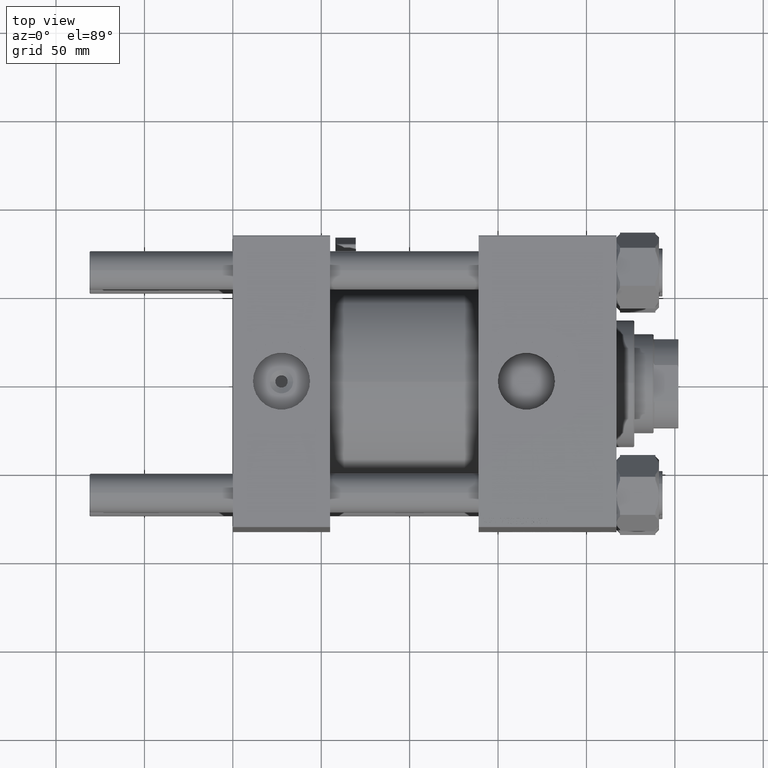
[diagram: clean part render]
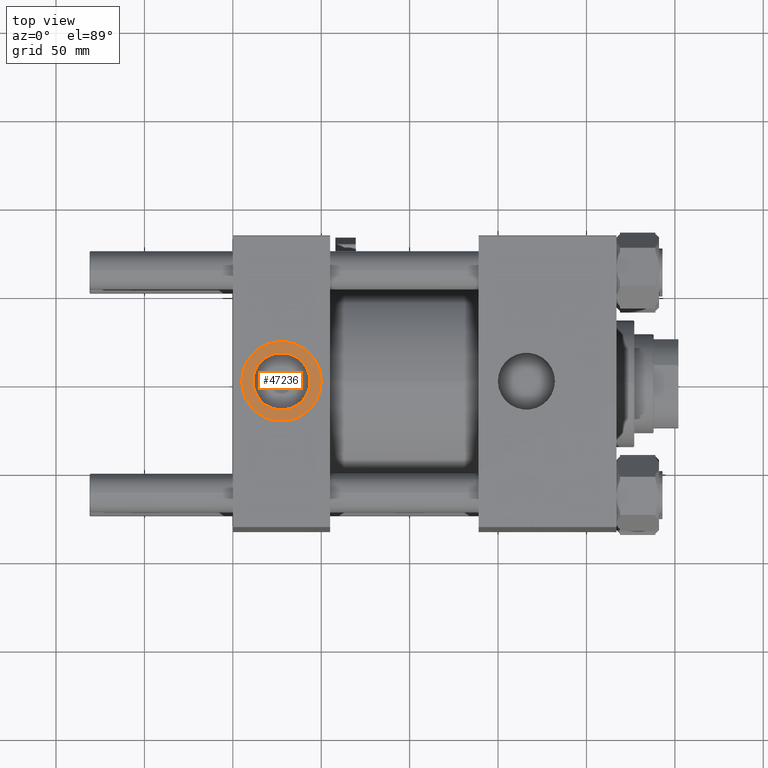
[diagram: same view with one face highlighted and labeled with its STEP entity id]
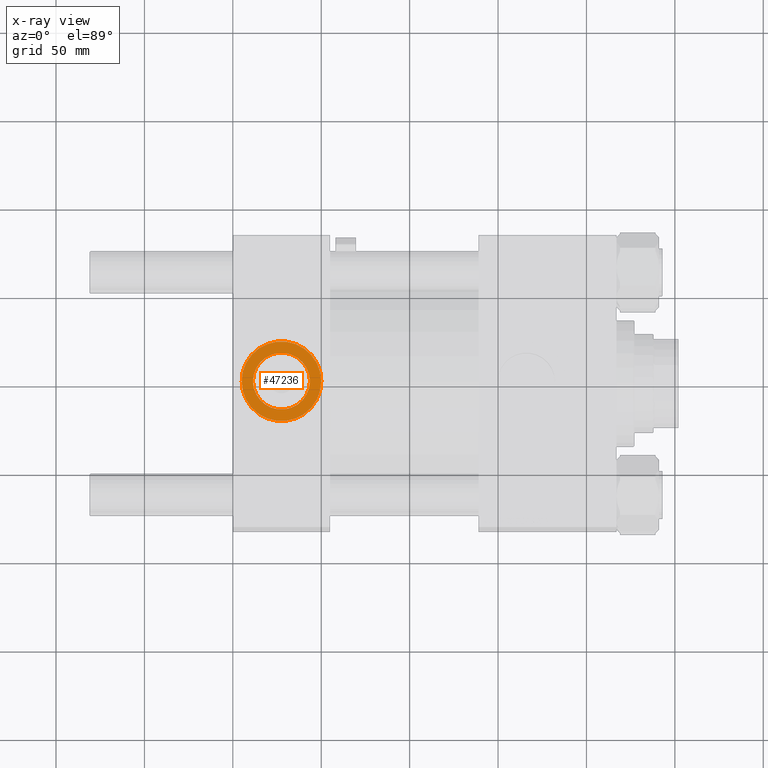
[diagram: x-ray of the same camera — body ghosted, the highlighted face saturated]
A machine part, top view. The second image highlights one B-rep face of the part: STEP entity #47236.
The next image is the same camera in x-ray: the body ghosted, the highlighted face saturated — about 0% of this face is hidden behind the body in this view.
In plain terms, the highlighted planar face has unit normal (0, 0, 1).
Its self-contained STEP definition (entity closure, byte-faithful):
#424 = ORIENTED_EDGE ( 'NONE', *, *, #9809, .T. ) ;
#1950 = CARTESIAN_POINT ( 'NONE',  ( 27.50000000000000000, -8.673617379884037050E-15, 82.30000000000001137 ) ) ;
#5539 = ORIENTED_EDGE ( 'NONE', *, *, #5695, .T. ) ;
#5695 = EDGE_CURVE ( 'NONE', #24710, #45127, #39910, .T. ) ;
#5723 = ORIENTED_EDGE ( 'NONE', *, *, #8083, .F. ) ;
#7278 = CARTESIAN_POINT ( 'NONE',  ( 27.50000000000000000, -8.673617379884037050E-15, 82.30000000000001137 ) ) ;
#8083 = EDGE_CURVE ( 'NONE', #50479, #17357, #19612, .T. ) ;
#8230 = CARTESIAN_POINT ( 'NONE',  ( 27.50000000000000000, -8.673617379884037050E-15, 82.30000000000001137 ) ) ;
#8589 = AXIS2_PLACEMENT_3D ( 'NONE', #1950, #46127, #46641 ) ;
#8626 = EDGE_LOOP ( 'NONE', ( #25389, #5723 ) ) ;
#9476 = DIRECTION ( 'NONE',  ( 0.000000000000000000, 0.000000000000000000, 1.000000000000000000 ) ) ;
#9809 = EDGE_CURVE ( 'NONE', #45127, #24710, #15415, .T. ) ;
#10750 = DIRECTION ( 'NONE',  ( 0.000000000000000000, 0.000000000000000000, 1.000000000000000000 ) ) ;
#11015 = PLANE ( 'NONE',  #40804 ) ;
#11504 = CARTESIAN_POINT ( 'NONE',  ( 27.50000000000000000, -8.673617379884037050E-15, 82.30000000000001137 ) ) ;
#12630 = EDGE_LOOP ( 'NONE', ( #424, #5539 ) ) ;
#12753 = DIRECTION ( 'NONE',  ( 1.000000000000000000, 0.000000000000000000, 0.000000000000000000 ) ) ;
#14528 = CARTESIAN_POINT ( 'NONE',  ( 11.37999999999999012, -6.699486739658503022E-15, 82.30000000000001137 ) ) ;
#15061 = CARTESIAN_POINT ( 'NONE',  ( 50.00000000000000000, -8.673617379884037050E-15, 82.30000000000001137 ) ) ;
#15415 = CIRCLE ( 'NONE', #8589, 22.50000000000000355 ) ;
#17357 = VERTEX_POINT ( 'NONE', #33968 ) ;
#17471 = CARTESIAN_POINT ( 'NONE',  ( 27.50000000000000000, -8.673617379884037050E-15, 82.30000000000001137 ) ) ;
#19612 = CIRCLE ( 'NONE', #23045, 16.12000000000000455 ) ;
#20066 = FACE_BOUND ( 'NONE', #8626, .T. ) ;
#20568 = DIRECTION ( 'NONE',  ( 1.000000000000000000, 0.000000000000000000, 0.000000000000000000 ) ) ;
#21219 = DIRECTION ( 'NONE',  ( 1.000000000000000000, 0.000000000000000000, 0.000000000000000000 ) ) ;
#23045 = AXIS2_PLACEMENT_3D ( 'NONE', #17471, #9476, #21219 ) ;
#24710 = VERTEX_POINT ( 'NONE', #35331 ) ;
#25389 = ORIENTED_EDGE ( 'NONE', *, *, #52237, .F. ) ;
#28489 = DIRECTION ( 'NONE',  ( 0.000000000000000000, 0.000000000000000000, 1.000000000000000000 ) ) ;
#32033 = FACE_OUTER_BOUND ( 'NONE', #12630, .T. ) ;
#33968 = CARTESIAN_POINT ( 'NONE',  ( 43.62000000000000455, -8.673617379884037050E-15, 82.30000000000001137 ) ) ;
#34202 = AXIS2_PLACEMENT_3D ( 'NONE', #11504, #48477, #20568 ) ;
#35331 = CARTESIAN_POINT ( 'NONE',  ( 4.999999999999993783, -5.918162081802491483E-15, 82.30000000000001137 ) ) ;
#39910 = CIRCLE ( 'NONE', #52648, 22.50000000000000355 ) ;
#40804 = AXIS2_PLACEMENT_3D ( 'NONE', #7278, #10750, #44001 ) ;
#44001 = DIRECTION ( 'NONE',  ( 1.000000000000000000, 0.000000000000000000, -0.000000000000000000 ) ) ;
#45127 = VERTEX_POINT ( 'NONE', #15061 ) ;
#46127 = DIRECTION ( 'NONE',  ( 0.000000000000000000, 0.000000000000000000, 1.000000000000000000 ) ) ;
#46641 = DIRECTION ( 'NONE',  ( 1.000000000000000000, 0.000000000000000000, 0.000000000000000000 ) ) ;
#47236 = ADVANCED_FACE ( 'NONE', ( #20066, #32033 ), #11015, .T. ) ;
#48477 = DIRECTION ( 'NONE',  ( 0.000000000000000000, 0.000000000000000000, 1.000000000000000000 ) ) ;
#49487 = CIRCLE ( 'NONE', #34202, 16.12000000000000455 ) ;
#50479 = VERTEX_POINT ( 'NONE', #14528 ) ;
#52237 = EDGE_CURVE ( 'NONE', #17357, #50479, #49487, .T. ) ;
#52648 = AXIS2_PLACEMENT_3D ( 'NONE', #8230, #28489, #12753 ) ;